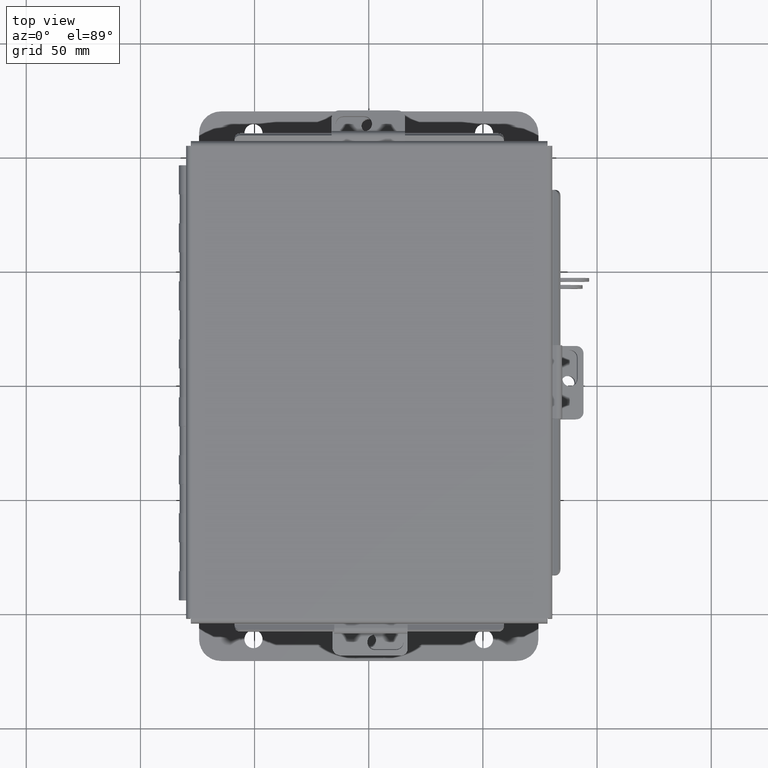
[diagram: clean part render]
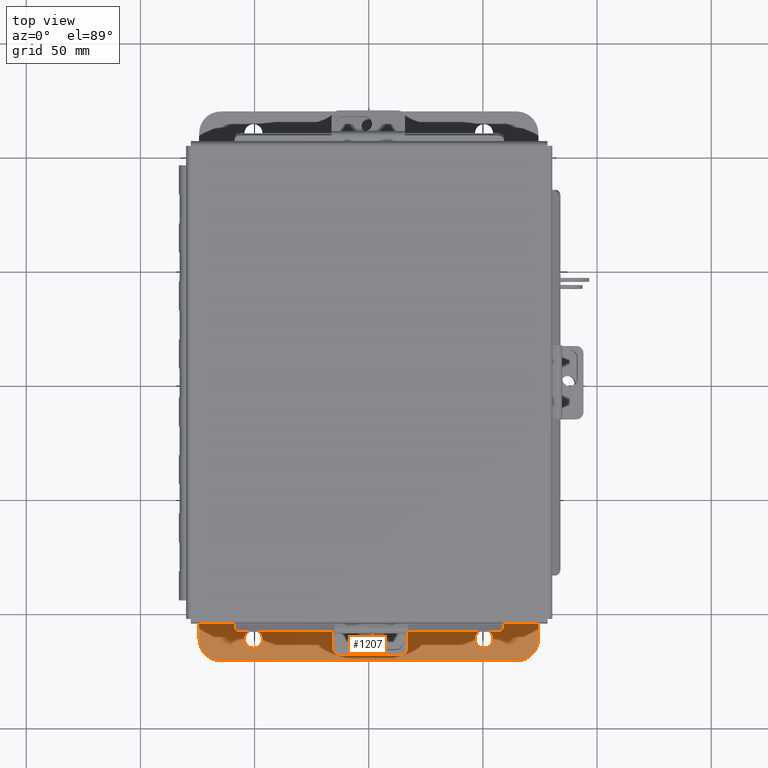
[diagram: same view with one face highlighted and labeled with its STEP entity id]
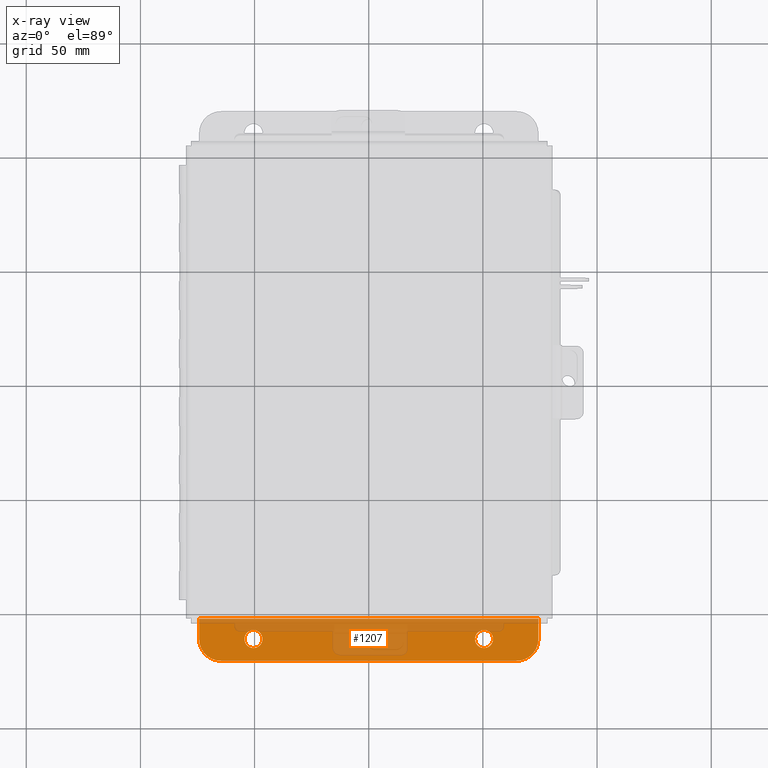
[diagram: x-ray of the same camera — body ghosted, the highlighted face saturated]
A machine part, top view. The second image highlights one B-rep face of the part: STEP entity #1207.
The next image is the same camera in x-ray: the body ghosted, the highlighted face saturated — about 41% of this face is hidden behind the body in this view.
In plain terms, the highlighted planar face has unit normal (0, -0, 1).
Its self-contained STEP definition (entity closure, byte-faithful):
#72 = AXIS2_PLACEMENT_3D ( 'NONE', #8826, #1725, #10023 ) ;
#307 = VERTEX_POINT ( 'NONE', #4547 ) ;
#754 = CARTESIAN_POINT ( 'NONE',  ( 1.987799999999999100, 0.3628000000000046700, -2.112299999999999800 ) ) ;
#769 = CARTESIAN_POINT ( 'NONE',  ( 2.925299999999999600, 4.370956789862821100E-015, -2.112299999999999400 ) ) ;
#924 = EDGE_CURVE ( 'NONE', #307, #9523, #11791, .T. ) ;
#1207 = ADVANCED_FACE ( 'NONE', ( #7448, #11520, #14695 ), #3680, .T. ) ;
#1358 = CARTESIAN_POINT ( 'NONE',  ( -2.925300000000000500, 0.7378000000000005700, -2.112300000000001600 ) ) ;
#1408 = DIRECTION ( 'NONE',  ( -0.0000000000000000000, -3.332425039709726500E-015, -1.000000000000000000 ) ) ;
#1661 = CIRCLE ( 'NONE', #3532, 0.1560000000000001700 ) ;
#1725 = DIRECTION ( 'NONE',  ( -0.0000000000000000000, -3.332425039709726500E-015, -1.000000000000000000 ) ) ;
#1822 = CARTESIAN_POINT ( 'NONE',  ( 2.925299999999999600, 0.3628000000000046700, -2.112299999999998100 ) ) ;
#1848 = CIRCLE ( 'NONE', #72, 0.1560000000000001700 ) ;
#1855 = CARTESIAN_POINT ( 'NONE',  ( 2.925299999999999600, 0.01300000000000393200, -2.112299999999999400 ) ) ;
#1986 = LINE ( 'NONE', #11323, #5089 ) ;
#2153 = VERTEX_POINT ( 'NONE', #9393 ) ;
#2264 = DIRECTION ( 'NONE',  ( -0.0000000000000000000, -3.332425039709726500E-015, -1.000000000000000000 ) ) ;
#2282 = ORIENTED_EDGE ( 'NONE', *, *, #924, .T. ) ;
#2344 = ORIENTED_EDGE ( 'NONE', *, *, #14145, .F. ) ;
#2351 = EDGE_CURVE ( 'NONE', #13998, #5274, #1986, .T. ) ;
#3203 = DIRECTION ( 'NONE',  ( 1.000000000000000000, 4.910036603141682400E-031, -0.0000000000000000000 ) ) ;
#3466 = LINE ( 'NONE', #1358, #9417 ) ;
#3482 = ORIENTED_EDGE ( 'NONE', *, *, #2351, .F. ) ;
#3532 = AXIS2_PLACEMENT_3D ( 'NONE', #8495, #1408, #9697 ) ;
#3578 = CARTESIAN_POINT ( 'NONE',  ( 2.550299999999999100, 0.3628000000000046700, -2.112300000000000300 ) ) ;
#3680 = PLANE ( 'NONE',  #3890 ) ;
#3725 = AXIS2_PLACEMENT_3D ( 'NONE', #12229, #5077, #13423 ) ;
#3887 = CIRCLE ( 'NONE', #4955, 0.1560000000000001700 ) ;
#3890 = AXIS2_PLACEMENT_3D ( 'NONE', #9214, #5739, #9720 ) ;
#4004 = EDGE_CURVE ( 'NONE', #5274, #7694, #3466, .T. ) ;
#4168 = LINE ( 'NONE', #769, #10514 ) ;
#4339 = ORIENTED_EDGE ( 'NONE', *, *, #4347, .T. ) ;
#4347 = EDGE_CURVE ( 'NONE', #14114, #2153, #1661, .T. ) ;
#4445 = LINE ( 'NONE', #11484, #11125 ) ;
#4547 = CARTESIAN_POINT ( 'NONE',  ( 1.987799999999997100, 0.2068000000000045100, -2.112299999999999400 ) ) ;
#4693 = CIRCLE ( 'NONE', #3725, 0.3750000000000000600 ) ;
#4758 = DIRECTION ( 'NONE',  ( 0.0000000000000000000, -1.000000000000000000, 3.642463991552350200E-015 ) ) ;
#4955 = AXIS2_PLACEMENT_3D ( 'NONE', #5634, #13954, #6800 ) ;
#5077 = DIRECTION ( 'NONE',  ( 0.0000000000000000000, 3.332425039709726500E-015, 1.000000000000000000 ) ) ;
#5089 = VECTOR ( 'NONE', #8207, 39.37007874015748100 ) ;
#5219 = ORIENTED_EDGE ( 'NONE', *, *, #7890, .T. ) ;
#5274 = VERTEX_POINT ( 'NONE', #10408 ) ;
#5343 = EDGE_LOOP ( 'NONE', ( #4339, #5219 ) ) ;
#5634 = CARTESIAN_POINT ( 'NONE',  ( -1.987800000000000000, 0.3628000000000002900, -2.112299999999999800 ) ) ;
#5739 = DIRECTION ( 'NONE',  ( -1.555753819465285400E-061, 3.332425039709726500E-015, 1.000000000000000000 ) ) ;
#5894 = VERTEX_POINT ( 'NONE', #1822 ) ;
#6800 = DIRECTION ( 'NONE',  ( 0.0000000000000000000, -1.000000000000000000, 3.502369222646487400E-015 ) ) ;
#6918 = CARTESIAN_POINT ( 'NONE',  ( -2.925300000000000500, 0.3628000000000002900, -2.112300000000000300 ) ) ;
#7165 = DIRECTION ( 'NONE',  ( 0.0000000000000000000, -1.000000000000000000, 3.502369222646487400E-015 ) ) ;
#7448 = FACE_BOUND ( 'NONE', #5343, .T. ) ;
#7608 = DIRECTION ( 'NONE',  ( 3.994427860841574400E-031, 1.000000000000000000, -3.332425039709726500E-015 ) ) ;
#7619 = CIRCLE ( 'NONE', #11348, 0.3750000000000000600 ) ;
#7694 = VERTEX_POINT ( 'NONE', #6918 ) ;
#7890 = EDGE_CURVE ( 'NONE', #2153, #14114, #3887, .T. ) ;
#8163 = EDGE_CURVE ( 'NONE', #5894, #11834, #7619, .T. ) ;
#8188 = AXIS2_PLACEMENT_3D ( 'NONE', #754, #2264, #7165 ) ;
#8207 = DIRECTION ( 'NONE',  ( -1.000000000000000000, -4.910036603141682400E-031, 0.0000000000000000000 ) ) ;
#8495 = CARTESIAN_POINT ( 'NONE',  ( -1.987800000000000000, 0.3628000000000002900, -2.112299999999999800 ) ) ;
#8826 = CARTESIAN_POINT ( 'NONE',  ( 1.987799999999999100, 0.3628000000000046700, -2.112299999999999800 ) ) ;
#9068 = DIRECTION ( 'NONE',  ( -3.994427860841574400E-031, -1.000000000000000000, 3.332425039709726500E-015 ) ) ;
#9214 = CARTESIAN_POINT ( 'NONE',  ( 0.0000000000000000000, -2.185478394931410600E-015, -2.112299999999999400 ) ) ;
#9358 = EDGE_CURVE ( 'NONE', #9523, #307, #1848, .T. ) ;
#9393 = CARTESIAN_POINT ( 'NONE',  ( -1.987800000000002200, 0.2068000000000001200, -2.112299999999999400 ) ) ;
#9417 = VECTOR ( 'NONE', #7608, 39.37007874015748100 ) ;
#9523 = VERTEX_POINT ( 'NONE', #10555 ) ;
#9697 = DIRECTION ( 'NONE',  ( 0.0000000000000000000, -1.000000000000000000, 3.502369222646487400E-015 ) ) ;
#9720 = DIRECTION ( 'NONE',  ( -3.994427860841588400E-031, -1.000000000000000000, 3.332425039709726500E-015 ) ) ;
#10023 = DIRECTION ( 'NONE',  ( 0.0000000000000000000, -1.000000000000000000, 3.502369222646487400E-015 ) ) ;
#10165 = EDGE_LOOP ( 'NONE', ( #14582, #2282 ) ) ;
#10280 = VERTEX_POINT ( 'NONE', #11013 ) ;
#10408 = CARTESIAN_POINT ( 'NONE',  ( -2.925300000000000000, 0.01299999999999956100, -2.112299999999999400 ) ) ;
#10514 = VECTOR ( 'NONE', #9068, 39.37007874015748100 ) ;
#10550 = EDGE_CURVE ( 'NONE', #5894, #13998, #4168, .T. ) ;
#10555 = CARTESIAN_POINT ( 'NONE',  ( 1.987799999999997100, 0.5188000000000048100, -2.112300000000000700 ) ) ;
#11013 = CARTESIAN_POINT ( 'NONE',  ( -2.550299999999999100, 0.7378000000000005700, -2.112299999999999400 ) ) ;
#11036 = EDGE_LOOP ( 'NONE', ( #2344, #13440, #13219, #3482, #14652, #11770 ) ) ;
#11125 = VECTOR ( 'NONE', #3203, 39.37007874015748100 ) ;
#11221 = EDGE_CURVE ( 'NONE', #10280, #7694, #4693, .T. ) ;
#11323 = CARTESIAN_POINT ( 'NONE',  ( 2.925299999999999600, 0.01300000000000447800, -2.112299999999999400 ) ) ;
#11348 = AXIS2_PLACEMENT_3D ( 'NONE', #3578, #11900, #4758 ) ;
#11484 = CARTESIAN_POINT ( 'NONE',  ( 2.925299999999999600, 0.7378000000000043400, -2.112299999999999400 ) ) ;
#11520 = FACE_BOUND ( 'NONE', #10165, .T. ) ;
#11770 = ORIENTED_EDGE ( 'NONE', *, *, #8163, .T. ) ;
#11791 = CIRCLE ( 'NONE', #8188, 0.1560000000000001700 ) ;
#11834 = VERTEX_POINT ( 'NONE', #14357 ) ;
#11900 = DIRECTION ( 'NONE',  ( 0.0000000000000000000, 3.332425039709726500E-015, 1.000000000000000000 ) ) ;
#12229 = CARTESIAN_POINT ( 'NONE',  ( -2.550299999999999100, 0.3628000000000002900, -2.112299999999998100 ) ) ;
#12641 = CARTESIAN_POINT ( 'NONE',  ( -1.987800000000002200, 0.5188000000000004800, -2.112300000000000300 ) ) ;
#13219 = ORIENTED_EDGE ( 'NONE', *, *, #4004, .F. ) ;
#13423 = DIRECTION ( 'NONE',  ( 0.0000000000000000000, -1.000000000000000000, 3.642463991552350200E-015 ) ) ;
#13440 = ORIENTED_EDGE ( 'NONE', *, *, #11221, .T. ) ;
#13954 = DIRECTION ( 'NONE',  ( -0.0000000000000000000, -3.332425039709726500E-015, -1.000000000000000000 ) ) ;
#13998 = VERTEX_POINT ( 'NONE', #1855 ) ;
#14114 = VERTEX_POINT ( 'NONE', #12641 ) ;
#14145 = EDGE_CURVE ( 'NONE', #10280, #11834, #4445, .T. ) ;
#14357 = CARTESIAN_POINT ( 'NONE',  ( 2.550299999999999100, 0.7378000000000043400, -2.112300000000001600 ) ) ;
#14582 = ORIENTED_EDGE ( 'NONE', *, *, #9358, .T. ) ;
#14652 = ORIENTED_EDGE ( 'NONE', *, *, #10550, .F. ) ;
#14695 = FACE_OUTER_BOUND ( 'NONE', #11036, .T. ) ;